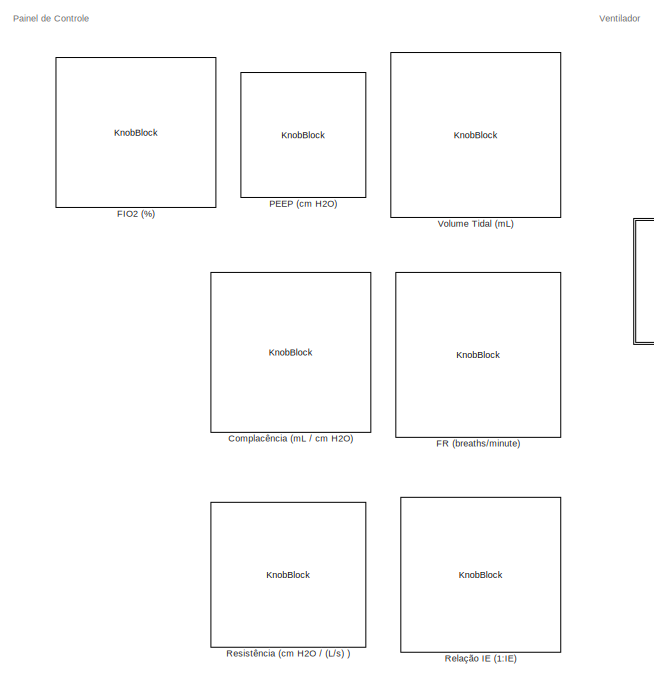
[diagram: root canvas - part 1/3, left side, full height]
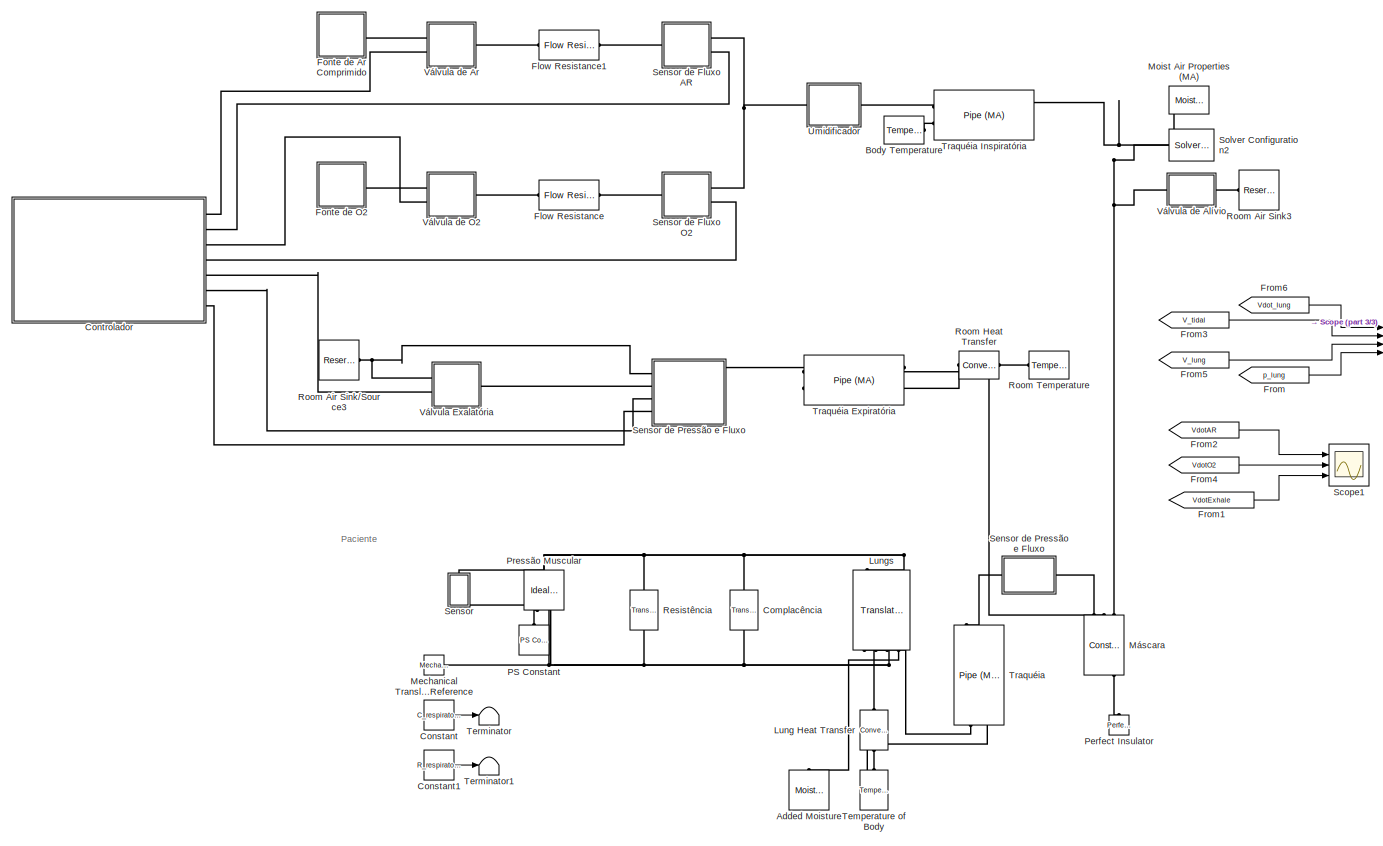
[diagram: root canvas - part 2/3, center side, full height]
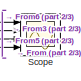
[diagram: root canvas - part 3/3, middle right region]
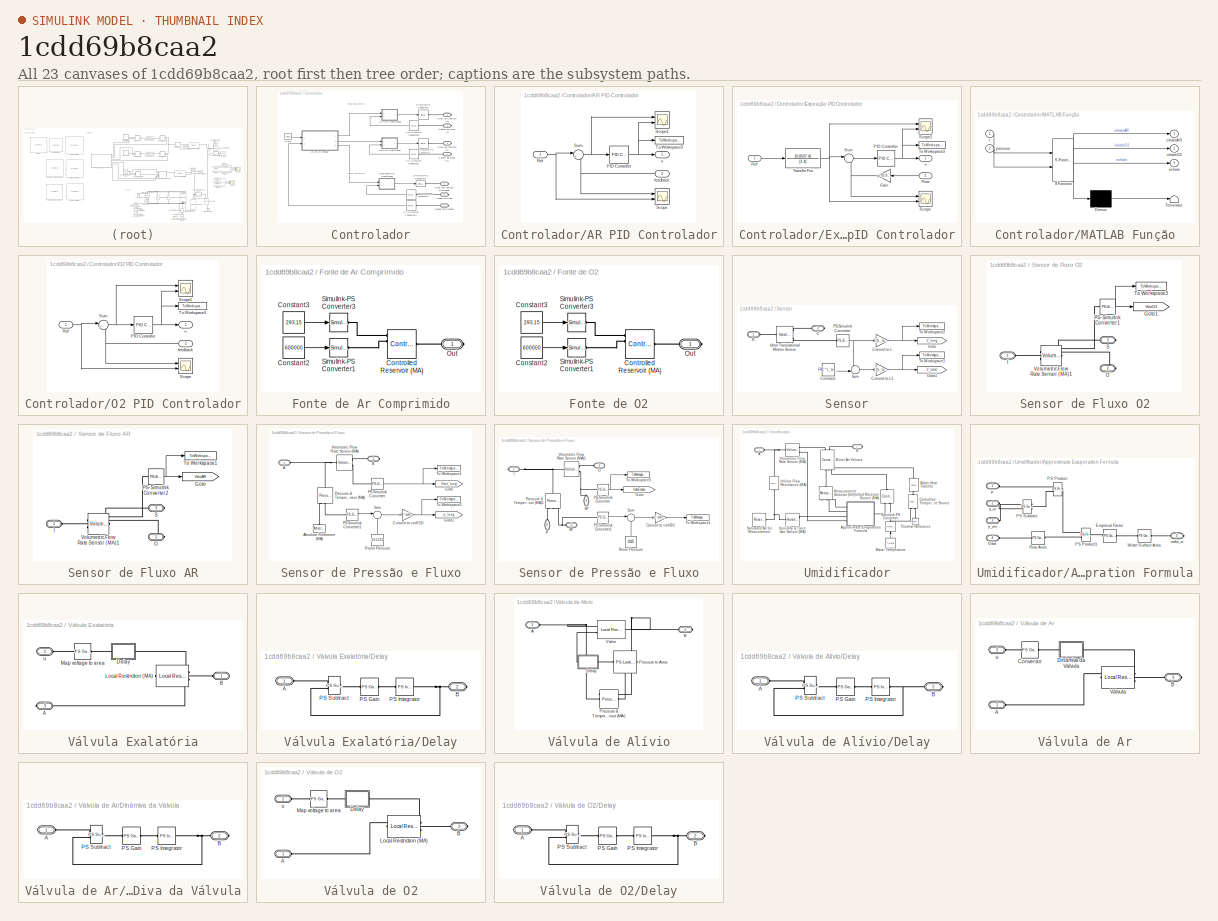
[diagram: thumbnail index - all 23 canvases of the model, root first then tree order]
MODEL slx_1cdd69b8caa2
KIND model
CONFIG AbsTol = 1e-5
CONFIG EnableMultiTasking = off
CONFIG FixedStep = auto
CONFIG MaxStep = 1e-3
CONFIG MinStep = auto
CONFIG PostLoadFcn = hws = get_param(bdroot, 'modelworkspace');\nhws.assignin('T_room', 20); % degC\nhws.assignin('RH_room', 0.1); % degC\nhws.assignin('T_humidifier', 40); % degC\nhws.assignin('T_body', 37); % degC\n\nhws.assignin('L_tube', 1); % m\nhws.assignin('D_tube', 0.01); % m\nhws.assignin('L_trachea', 0.15); % m\nhws.assignin('D_trachea', 0.015); % m\n\n% Conversion factors\nhws.assignin('cmH2O_to_Pa', 98.0665);\nhws.assi...<+433ch>
CONFIG RelTol = 1e-6
CONFIG SampleTimeConstraint = Unconstrained
CONFIG Solver = VariableStepAuto
CONFIG SolverName = VariableStepAuto
CONFIG StartTime = 0.0
CONFIG StopTime = 30
WORKSPACE source: mxarray member
WORKSPACE C_respiratory = 50
WORKSPACE D_trachea = 0.015
WORKSPACE D_tube = 0.01
WORKSPACE FRC = 2
WORKSPACE L_to_m3 = 0.001
WORKSPACE L_trachea = 0.15
WORKSPACE L_tube = 1
WORKSPACE P_muscle = 0
WORKSPACE RH_room = 0.1
WORKSPACE R_respiratory = 5
WORKSPACE T_body = 37
WORKSPACE T_humidifier = 40
WORKSPACE T_room = 20
WORKSPACE cmH2O_to_Pa = 98.0665
BLOCK [Reference] Added Moisture  REF=fl_lib/Moist Air/Sources/Moisture & Trace Gas
Sources/Moisture Source (MA)
  NameLocation = left
  Ports = [0, 0, 0, 0, 0, 1]
  SourceBlock = fl_lib/Moist Air/Sources/Moisture & Trace Gas\nSources/Moisture Source (MA)
  SourceProductBaseCode = SS
  SourceType = Moisture Source (MA)
BLOCK [Reference] Body Temperature  REF=fl_lib/Thermal/Thermal Sources/Temperature Source
  Ports = [0, 0, 0, 0, 0, 1]
  SourceBlock = fl_lib/Thermal/Thermal Sources/Temperature Source
  SourceProductBaseCode = SS
  SourceType = Temperature Source
BLOCK [Reference] Complacência  REF=fl_lib/Mechanical/Translational
Elements/Translational Spring
  NameLocation = right
  Ports = [0, 0, 0, 0, 0, 1, 1]
  SourceBlock = fl_lib/Mechanical/Translational\nElements/Translational Spring
  SourceProductBaseCode = SS
  SourceType = Translational Spring
BLOCK [KnobBlock] Complacência (mL // cm H2O)
  LabelPosition = Hide
  TickInterval = 10
BLOCK [Constant] Constant
  Value = C_respiratory
BLOCK [Constant] Constant1
  Value = R_respiratory
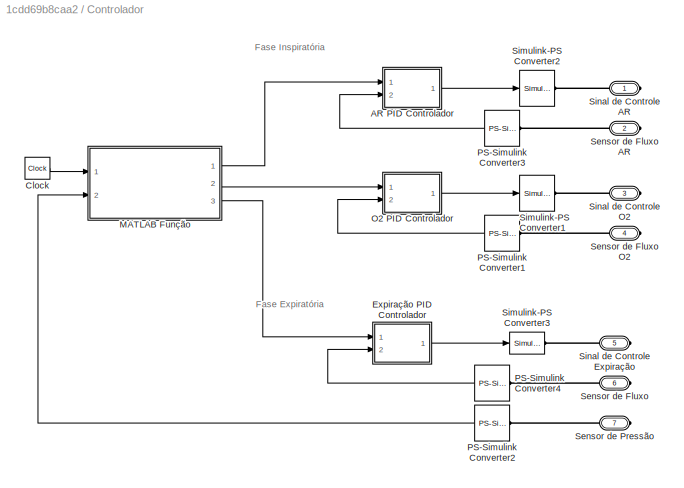
BLOCK [SubSystem] Controlador
  Ports = [0, 0, 0, 0, 0, 0, 7]
  RequestExecContextInheritance = off
  Tag = PublishSubsystem
BLOCK [SubSystem] Controlador/AR PID Controlador
  Ports = [2, 1]
  RequestExecContextInheritance = off
BLOCK [Reference] Controlador/AR PID Controlador/PID Controller  REF=simulink/Continuous/PID Controller
  Ports = [1, 1]
  SourceBlock = simulink/Continuous/PID Controller
  SourceProductBaseCode = SL
  SourceType = PID 1dof
BLOCK [Inport] Controlador/AR PID Controlador/Ref
BLOCK [Scope] Controlador/AR PID Controlador/Scope
  Floating = off
  NumInputPorts = 2
  Ports = [2]
  ScopeSpecificationString = Simulink.scopes.TimeScopeBlockCfg('CurrentConfiguration', extmgr.ConfigurationSet(extmgr.Configuration('Core','General UI',true),extmgr.Configuration('Core','Source UI',true),extmgr.Configuration('Sources','WiredSimulink',true,'DataLoggingVariableName','ScopeData3'),extmgr.Configuration('Visuals','Time Domain',true,'SerializedDisplays',{struct('MinYLimReal','-0.02778','MaxYLimReal','0.25','YLabelR...<+1410ch>
BLOCK [Scope] Controlador/AR PID Controlador/Scope1
  Floating = off
  NumInputPorts = 2
  Ports = [2]
  ScopeSpecificationString = Simulink.scopes.TimeScopeBlockCfg('CurrentConfiguration', extmgr.ConfigurationSet(extmgr.Configuration('Core','General UI',true),extmgr.Configuration('Core','Source UI',true),extmgr.Configuration('Sources','WiredSimulink',true,'DataLoggingVariableName','ScopeData4'),extmgr.Configuration('Visuals','Time Domain',true,'SerializedDisplays',{struct('MinYLimReal','-0.27708','MaxYLimReal','0.27758','YLab...<+2066ch>
BLOCK [Sum] Controlador/AR PID Controlador/Sum
  Inputs = |+-
  Ports = [2, 1]
BLOCK [ToWorkspace] Controlador/AR PID Controlador/To Workspace3
  FixptAsFi = on
  MaxDataPoints = inf
  Ports = [1]
  SampleTime = 1e-3
  Save2DSignal = 2-D array (concatenate along first dimension)
  VariableName = ControlAR
BLOCK [Inport] Controlador/AR PID Controlador/feedback
  Port = 2
BLOCK [Outport] Controlador/AR PID Controlador/u
BLOCK [Clock] Controlador/Clock
  DisplayTime = on
BLOCK [SubSystem] Controlador/Expiração PID Controlador
  Ports = [2, 1]
  RequestExecContextInheritance = off
BLOCK [Inport] Controlador/Expiração PID Controlador/Flow
  Port = 2
BLOCK [Gain] Controlador/Expiração PID Controlador/Gain
  Gain = pi*(0.9*D_tube)^2/4
  NameLocation = top
BLOCK [Reference] Controlador/Expiração PID Controlador/PID Controller  REF=simulink/Continuous/PID Controller
  Ports = [1, 1]
  SourceBlock = simulink/Continuous/PID Controller
  SourceProductBaseCode = SL
  SourceType = PID 1dof
BLOCK [Inport] Controlador/Expiração PID Controlador/Ref
BLOCK [Scope] Controlador/Expiração PID Controlador/Scope
  Floating = off
  NumInputPorts = 2
  Ports = [2]
  ScopeSpecificationString = Simulink.scopes.TimeScopeBlockCfg('CurrentConfiguration', extmgr.ConfigurationSet(extmgr.Configuration('Core','General UI',true),extmgr.Configuration('Core','Source UI',true),extmgr.Configuration('Sources','WiredSimulink',true,'DataLoggingVariableName','ScopeData2'),extmgr.Configuration('Visuals','Time Domain',true,'SerializedDisplays',{struct('MinYLimReal','-0.000005','MaxYLimReal','0.000047','YL...<+1984ch>
BLOCK [Scope] Controlador/Expiração PID Controlador/Scope1
  Floating = off
  NumInputPorts = 2
  Ports = [2]
  ScopeSpecificationString = Simulink.scopes.TimeScopeBlockCfg('CurrentConfiguration', extmgr.ConfigurationSet(extmgr.Configuration('Core','General UI',true),extmgr.Configuration('Core','Source UI',true),extmgr.Configuration('Sources','WiredSimulink',true,'DataLoggingVariableName','ScopeData2'),extmgr.Configuration('Visuals','Time Domain',true,'SerializedDisplays',{struct('MinYLimReal','-0.000008','MaxYLimReal','0.000072','YL...<+2053ch>
BLOCK [Sum] Controlador/Expiração PID Controlador/Sum
  Inputs = |+-
  Ports = [2, 1]
BLOCK [ToWorkspace] Controlador/Expiração PID Controlador/To Workspace3
  FixptAsFi = on
  MaxDataPoints = inf
  Ports = [1]
  SampleTime = 1e-3
  Save2DSignal = 2-D array (concatenate along first dimension)
  VariableName = ControlExhale
BLOCK [TransferFcn] Controlador/Expiração PID Controlador/Transfer Fcn
  Denominator = [1 4]
  Numerator = [0.8507 4]
BLOCK [Outport] Controlador/Expiração PID Controlador/u
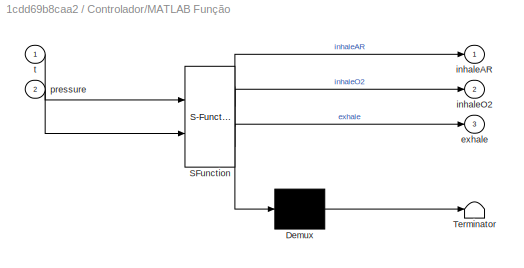
BLOCK [SubSystem] Controlador/MATLAB Função
  ErrorFcn = Stateflow.Translate.translate
  PermitHierarchicalResolution = ExplicitOnly
  Ports = [2, 3]
  RequestExecContextInheritance = off
  SFBlockType = MATLAB Function
  TreatAsAtomicUnit = on
BLOCK [Demux] Controlador/MATLAB Função/ Demux 
  Outputs = 1
  Ports = [1, 1]
BLOCK [S-Function] Controlador/MATLAB Função/ SFunction 
  EnableBusSupport = on
  FunctionName = sf_sfun
  Parameters = D_tube,IE,fio2,flowType,peep,respiratory_rate,tidal_volume
  PortCounts = [2 4]
  Ports = [2, 4]
  SFcnIsStateOwnerBlock = off
  SFunctionDeploymentMode = off
  Tag = Stateflow S-Function 2
BLOCK [Terminator] Controlador/MATLAB Função/ Terminator 
BLOCK [Outport] Controlador/MATLAB Função/exhale
  Port = 3
BLOCK [Outport] Controlador/MATLAB Função/inhaleAR
BLOCK [Outport] Controlador/MATLAB Função/inhaleO2
  Port = 2
BLOCK [Inport] Controlador/MATLAB Função/pressure
  Port = 2
BLOCK [Inport] Controlador/MATLAB Função/t
BLOCK [SubSystem] Controlador/O2 PID Controlador
  Ports = [2, 1]
  RequestExecContextInheritance = off
BLOCK [Reference] Controlador/O2 PID Controlador/PID Controller  REF=simulink/Continuous/PID Controller
  Ports = [1, 1]
  SourceBlock = simulink/Continuous/PID Controller
  SourceProductBaseCode = SL
  SourceType = PID 1dof
BLOCK [Inport] Controlador/O2 PID Controlador/Ref
BLOCK [Scope] Controlador/O2 PID Controlador/Scope
  Floating = off
  NumInputPorts = 2
  Ports = [2]
  ScopeSpecificationString = Simulink.scopes.TimeScopeBlockCfg('CurrentConfiguration', extmgr.ConfigurationSet(extmgr.Configuration('Core','General UI',true),extmgr.Configuration('Core','Source UI',true),extmgr.Configuration('Sources','WiredSimulink',true,'DataLoggingVariableName','ScopeData2'),extmgr.Configuration('Visuals','Time Domain',true,'SerializedDisplays',{struct('MinYLimReal','0.00008','MaxYLimReal','0.0003','YLabel...<+1418ch>
BLOCK [Scope] Controlador/O2 PID Controlador/Scope1
  Floating = off
  NumInputPorts = 2
  Ports = [2]
  ScopeSpecificationString = Simulink.scopes.TimeScopeBlockCfg('CurrentConfiguration', extmgr.ConfigurationSet(extmgr.Configuration('Core','General UI',true),extmgr.Configuration('Core','Source UI',true),extmgr.Configuration('Sources','WiredSimulink',true,'DataLoggingVariableName','ScopeData2'),extmgr.Configuration('Visuals','Time Domain',true,'SerializedDisplays',{struct('MinYLimReal','-0.0002','MaxYLimReal','-0.00000','YLab...<+2044ch>
BLOCK [Sum] Controlador/O2 PID Controlador/Sum
  Inputs = |+-
  Ports = [2, 1]
BLOCK [ToWorkspace] Controlador/O2 PID Controlador/To Workspace3
  FixptAsFi = on
  MaxDataPoints = inf
  Ports = [1]
  SampleTime = 1e-3
  Save2DSignal = 2-D array (concatenate along first dimension)
  VariableName = ControlO2
BLOCK [Inport] Controlador/O2 PID Controlador/feedback
  Port = 2
BLOCK [Outport] Controlador/O2 PID Controlador/u
BLOCK [Reference] Controlador/PS-Simulink Converter1  REF=nesl_utility/PS-Simulink
Converter
  Ports = [0, 1, 0, 0, 0, 1]
  SourceBlock = nesl_utility/PS-Simulink\nConverter
  SourceProductBaseCode = SS
  SourceType = PS-Simulink\nConverter
BLOCK [Reference] Controlador/PS-Simulink Converter2  REF=nesl_utility/PS-Simulink
Converter
  Ports = [0, 1, 0, 0, 0, 1]
  SourceBlock = nesl_utility/PS-Simulink\nConverter
  SourceProductBaseCode = SS
  SourceType = PS-Simulink\nConverter
BLOCK [Reference] Controlador/PS-Simulink Converter3  REF=nesl_utility/PS-Simulink
Converter
  Ports = [0, 1, 0, 0, 0, 1]
  SourceBlock = nesl_utility/PS-Simulink\nConverter
  SourceProductBaseCode = SS
  SourceType = PS-Simulink\nConverter
BLOCK [Reference] Controlador/PS-Simulink Converter4  REF=nesl_utility/PS-Simulink
Converter
  Ports = [0, 1, 0, 0, 0, 1]
  SourceBlock = nesl_utility/PS-Simulink\nConverter
  SourceProductBaseCode = SS
  SourceType = PS-Simulink\nConverter
BLOCK [PMIOPort] Controlador/Sensor de Fluxo
  Port = 6
  Side = Right
BLOCK [PMIOPort] Controlador/Sensor de Fluxo AR
  Port = 2
  Side = Right
BLOCK [PMIOPort] Controlador/Sensor de Fluxo O2
  Port = 4
  Side = Right
BLOCK [PMIOPort] Controlador/Sensor de Pressão
  Port = 7
  Side = Right
BLOCK [Reference] Controlador/Simulink-PS Converter1  REF=nesl_utility/Simulink-PS
Converter
  Ports = [1, 0, 0, 0, 0, 0, 1]
  SourceBlock = nesl_utility/Simulink-PS\nConverter
  SourceProductBaseCode = SS
  SourceType = Simulink-PS\nConverter
BLOCK [Reference] Controlador/Simulink-PS Converter2  REF=nesl_utility/Simulink-PS
Converter
  Ports = [1, 0, 0, 0, 0, 0, 1]
  SourceBlock = nesl_utility/Simulink-PS\nConverter
  SourceProductBaseCode = SS
  SourceType = Simulink-PS\nConverter
BLOCK [Reference] Controlador/Simulink-PS Converter3  REF=nesl_utility/Simulink-PS
Converter
  Ports = [1, 0, 0, 0, 0, 0, 1]
  SourceBlock = nesl_utility/Simulink-PS\nConverter
  SourceProductBaseCode = SS
  SourceType = Simulink-PS\nConverter
BLOCK [PMIOPort] Controlador/Sinal de Controle AR
  Side = Right
BLOCK [PMIOPort] Controlador/Sinal de Controle Expiração
  Port = 5
  Side = Right
BLOCK [PMIOPort] Controlador/Sinal de Controle O2
  Port = 3
  Side = Right
BLOCK [KnobBlock] FIO2 (%)
  LabelPosition = Hide
  ScaleMin = 21
  TickInterval = 10
BLOCK [KnobBlock] FR (breaths//minute)
  LabelPosition = Hide
  ScaleMax = 40
  TickInterval = 5
BLOCK [Reference] Flow Resistance  REF=fl_lib/Moist Air/Elements/Flow Resistance (MA)
  NameLocation = top
  Ports = [0, 0, 0, 0, 0, 1, 1]
  SourceBlock = fl_lib/Moist Air/Elements/Flow Resistance (MA)
  SourceProductBaseCode = SS
  SourceType = Flow Resistance (MA)
BLOCK [Reference] Flow Resistance1  REF=fl_lib/Moist Air/Elements/Flow Resistance (MA)
  NameLocation = top
  Ports = [0, 0, 0, 0, 0, 1, 1]
  SourceBlock = fl_lib/Moist Air/Elements/Flow Resistance (MA)
  SourceProductBaseCode = SS
  SourceType = Flow Resistance (MA)
BLOCK [SubSystem] Fonte de Ar Comprimido
  Ports = [0, 0, 0, 0, 0, 0, 1]
  RequestExecContextInheritance = off
BLOCK [Constant] Fonte de Ar Comprimido/Constant2
  Value = 600000
BLOCK [Constant] Fonte de Ar Comprimido/Constant3
  Value = 293.15
BLOCK [Reference] Fonte de Ar Comprimido/Controlled Reservoir (MA)  REF=fl_lib/Moist Air/Elements/Controlled Reservoir
(MA)
  Ports = [0, 0, 0, 0, 0, 1, 4]
  SourceBlock = fl_lib/Moist Air/Elements/Controlled Reservoir\n(MA)
  SourceProductBaseCode = SS
  SourceType = Controlled Reservoir\n(MA)
BLOCK [PMIOPort] Fonte de Ar Comprimido/Out
  Side = Right
BLOCK [Reference] Fonte de Ar Comprimido/Simulink-PS Converter1  REF=nesl_utility/Simulink-PS
Converter
  Ports = [1, 0, 0, 0, 0, 0, 1]
  SourceBlock = nesl_utility/Simulink-PS\nConverter
  SourceProductBaseCode = SS
  SourceType = Simulink-PS\nConverter
BLOCK [Reference] Fonte de Ar Comprimido/Simulink-PS Converter3  REF=nesl_utility/Simulink-PS
Converter
  Ports = [1, 0, 0, 0, 0, 0, 1]
  SourceBlock = nesl_utility/Simulink-PS\nConverter
  SourceProductBaseCode = SS
  SourceType = Simulink-PS\nConverter
BLOCK [SubSystem] Fonte de O2
  Ports = [0, 0, 0, 0, 0, 0, 1]
  RequestExecContextInheritance = off
BLOCK [Constant] Fonte de O2/Constant2
  Value = 600000
BLOCK [Constant] Fonte de O2/Constant3
  Value = 293.15
BLOCK [Reference] Fonte de O2/Controlled Reservoir (MA)  REF=fl_lib/Moist Air/Elements/Controlled Reservoir
(MA)
  Ports = [0, 0, 0, 0, 0, 1, 4]
  SourceBlock = fl_lib/Moist Air/Elements/Controlled Reservoir\n(MA)
  SourceProductBaseCode = SS
  SourceType = Controlled Reservoir\n(MA)
BLOCK [PMIOPort] Fonte de O2/Out
  Side = Right
BLOCK [Reference] Fonte de O2/Simulink-PS Converter1  REF=nesl_utility/Simulink-PS
Converter
  Ports = [1, 0, 0, 0, 0, 0, 1]
  SourceBlock = nesl_utility/Simulink-PS\nConverter
  SourceProductBaseCode = SS
  SourceType = Simulink-PS\nConverter
BLOCK [Reference] Fonte de O2/Simulink-PS Converter3  REF=nesl_utility/Simulink-PS
Converter
  Ports = [1, 0, 0, 0, 0, 0, 1]
  SourceBlock = nesl_utility/Simulink-PS\nConverter
  SourceProductBaseCode = SS
  SourceType = Simulink-PS\nConverter
BLOCK [From] From
  GotoTag = p_lung
  TagVisibility = global
BLOCK [From] From1
  GotoTag = VdotExhale
  TagVisibility = global
BLOCK [From] From2
  GotoTag = VdotAR
  TagVisibility = global
BLOCK [From] From3
  GotoTag = V_tidal
  TagVisibility = global
BLOCK [From] From4
  GotoTag = VdotO2
  TagVisibility = global
BLOCK [From] From5
  GotoTag = V_lung
  TagVisibility = global
BLOCK [From] From6
  GotoTag = Vdot_lung
  TagVisibility = global
BLOCK [Reference] Lung Heat Transfer  REF=fl_lib/Thermal/Thermal Elements/Convective Heat
Transfer
  NameLocation = right
  Ports = [0, 0, 0, 0, 0, 1, 1]
  SourceBlock = fl_lib/Thermal/Thermal Elements/Convective Heat\nTransfer
  SourceProductBaseCode = SS
  SourceType = Convective Heat\nTransfer
BLOCK [Reference] Lungs  REF=fl_lib/Moist Air/Elements/Translational
Mechanical Converter
(MA)
  NameLocation = right
  Ports = [0, 0, 0, 0, 0, 4, 3]
  SourceBlock = fl_lib/Moist Air/Elements/Translational\nMechanical Converter\n(MA)
  SourceProductBaseCode = SS
  SourceType = Translational\nMechanical Converter\n(MA)
BLOCK [Reference] Mechanical Translational Reference  REF=fl_lib/Mechanical/Translational
Elements/Mechanical
Translational
Reference
  Ports = [0, 0, 0, 0, 0, 1]
  SourceBlock = fl_lib/Mechanical/Translational\nElements/Mechanical\nTranslational\nReference
  SourceProductBaseCode = SS
  SourceType = Mechanical\nTranslational\nReference
BLOCK [Reference] Moist Air Properties (MA)  REF=fl_lib/Moist Air/Utilities/Moist Air Properties
(MA)
  NameLocation = top
  Ports = [0, 0, 0, 0, 0, 0, 1]
  SourceBlock = fl_lib/Moist Air/Utilities/Moist Air Properties\n(MA)
  SourceProductBaseCode = SS
  SourceType = Moist Air Properties\n(MA)
BLOCK [Reference] Máscara  REF=fl_lib/Moist Air/Elements/Constant Volume
Chamber (MA)
  NameLocation = right
  Ports = [0, 0, 0, 0, 0, 3, 3]
  SourceBlock = fl_lib/Moist Air/Elements/Constant Volume\nChamber (MA)
  SourceProductBaseCode = SS
  SourceType = Constant Volume\nChamber (MA)
BLOCK [KnobBlock] PEEP (cm H2O)
  LabelPosition = Hide
  ScaleMax = 20
  TickInterval = 5
BLOCK [Reference] PS Constant  REF=fl_lib/Physical Signals/Sources/PS Constant
  NameLocation = right
  Ports = [0, 0, 0, 0, 0, 0, 1]
  SourceBlock = fl_lib/Physical Signals/Sources/PS Constant
  SourceProductBaseCode = SS
  SourceType = PS Constant
BLOCK [Reference] Perfect Insulator  REF=fl_lib/Thermal/Thermal Elements/Perfect Insulator
  NameLocation = right
  Ports = [0, 0, 0, 0, 0, 1]
  SourceBlock = fl_lib/Thermal/Thermal Elements/Perfect Insulator
  SourceProductBaseCode = SS
  SourceType = Perfect Insulator
BLOCK [Reference] Pressão Muscular  REF=fl_lib/Mechanical/Mechanical Sources/Ideal Force Source
  NameLocation = right
  Ports = [0, 0, 0, 0, 0, 1, 2]
  SourceBlock = fl_lib/Mechanical/Mechanical Sources/Ideal Force Source
  SourceProductBaseCode = SS
  SourceType = Ideal Force Source
BLOCK [KnobBlock] Relação IE (1:IE)
  LabelPosition = Hide
  ScaleMax = 4
  ScaleMin = 1
  TickInterval = 0.5
BLOCK [Reference] Resistência  REF=fl_lib/Mechanical/Translational
Elements/Translational Damper
  NameLocation = right
  Ports = [0, 0, 0, 0, 0, 1, 1]
  SourceBlock = fl_lib/Mechanical/Translational\nElements/Translational Damper
  SourceProductBaseCode = SS
  SourceType = Translational Damper
BLOCK [KnobBlock] Resistência (cm H2O // (L//s) )
  LabelPosition = Hide
  ScaleMax = 50
  TickInterval = 5
BLOCK [Reference] Room Air Sink//Source3  REF=fl_lib/Moist Air/Elements/Reservoir (MA)
  Ports = [0, 0, 0, 0, 0, 1]
  SourceBlock = fl_lib/Moist Air/Elements/Reservoir (MA)
  SourceProductBaseCode = SS
  SourceType = Reservoir (MA)
BLOCK [Reference] Room Air Sink3  REF=fl_lib/Moist Air/Elements/Reservoir (MA)
  Ports = [0, 0, 0, 0, 0, 1]
  SourceBlock = fl_lib/Moist Air/Elements/Reservoir (MA)
  SourceProductBaseCode = SS
  SourceType = Reservoir (MA)
BLOCK [Reference] Room Heat Transfer  REF=fl_lib/Thermal/Thermal Elements/Convective Heat
Transfer
  NameLocation = top
  Ports = [0, 0, 0, 0, 0, 1, 1]
  SourceBlock = fl_lib/Thermal/Thermal Elements/Convective Heat\nTransfer
  SourceProductBaseCode = SS
  SourceType = Convective Heat\nTransfer
BLOCK [Reference] Room Temperature  REF=fl_lib/Thermal/Thermal Sources/Temperature Source
  NameLocation = top
  Ports = [0, 0, 0, 0, 0, 1]
  SourceBlock = fl_lib/Thermal/Thermal Sources/Temperature Source
  SourceProductBaseCode = SS
  SourceType = Temperature Source
BLOCK [Scope] Scope
  Floating = off
  NumInputPorts = 4
  Ports = [4]
  ScopeSpecificationString = Simulink.scopes.TimeScopeBlockCfg('CurrentConfiguration', extmgr.ConfigurationSet(extmgr.Configuration('Core','General UI',true),extmgr.Configuration('Core','Source UI',true),extmgr.Configuration('Sources','WiredSimulink',true),extmgr.Configuration('Visuals','Time Domain',true,'SerializedDisplays',{struct('MinYLimReal','-48.70218','MaxYLimReal','54.96606','YLabelReal','','MinYLimMag','0.00000','Ma...<+3537ch>
  Tag = PublishScope
BLOCK [Scope] Scope1
  Floating = off
  NumInputPorts = 3
  Ports = [3]
  ScopeSpecificationString = Simulink.scopes.TimeScopeBlockCfg('CurrentConfiguration', extmgr.ConfigurationSet(extmgr.Configuration('Core','General UI',true),extmgr.Configuration('Core','Source UI',true),extmgr.Configuration('Sources','WiredSimulink',true,'DataLoggingVariableName','ScopeData1'),extmgr.Configuration('Visuals','Time Domain',true,'SerializedDisplays',{struct('MinYLimReal','-3.6836','MaxYLimReal','33.21472','YLab...<+3161ch>
  Tag = PublishScope
BLOCK [SubSystem] Sensor
  NameLocation = right
  Ports = [0, 0, 0, 0, 0, 1, 1]
  RequestExecContextInheritance = off
BLOCK [SubSystem] Sensor de Fluxo AR
  Ports = [0, 0, 0, 0, 0, 1, 2]
  RequestExecContextInheritance = off
BLOCK [Goto] Sensor de Fluxo AR/Goto
  GotoTag = VdotAR
  TagVisibility = global
BLOCK [PMIOPort] Sensor de Fluxo AR/I
  Side = Left
BLOCK [PMIOPort] Sensor de Fluxo AR/O
  Port = 2
  Side = Right
BLOCK [Reference] Sensor de Fluxo AR/PS-Simulink Converter2  REF=nesl_utility/PS-Simulink
Converter
  Ports = [0, 1, 0, 0, 0, 1]
  SourceBlock = nesl_utility/PS-Simulink\nConverter
  SourceProductBaseCode = SS
  SourceType = PS-Simulink\nConverter
BLOCK [PMIOPort] Sensor de Fluxo AR/S
  Port = 3
  Side = Right
BLOCK [ToWorkspace] Sensor de Fluxo AR/To Workspace1
  FixptAsFi = on
  MaxDataPoints = inf
  Ports = [1]
  SampleTime = 1e-3
  Save2DSignal = 2-D array (concatenate along first dimension)
  VariableName = FlowAR
BLOCK [Reference] Sensor de Fluxo AR/Volumetric Flow Rate Sensor (MA)1  REF=fl_lib/Moist Air/Sensors/Volumetric Flow Rate
Sensor (MA)
  Ports = [0, 0, 0, 0, 0, 1, 2]
  SourceBlock = fl_lib/Moist Air/Sensors/Volumetric Flow Rate\nSensor (MA)
  SourceProductBaseCode = SS
  SourceType = Volumetric Flow Rate\nSensor (MA)
BLOCK [SubSystem] Sensor de Fluxo O2
  Ports = [0, 0, 0, 0, 0, 1, 2]
  RequestExecContextInheritance = off
BLOCK [Goto] Sensor de Fluxo O2/Goto1
  GotoTag = VdotO2
  TagVisibility = global
BLOCK [PMIOPort] Sensor de Fluxo O2/I
  Side = Left
BLOCK [PMIOPort] Sensor de Fluxo O2/O
  Port = 2
  Side = Right
BLOCK [Reference] Sensor de Fluxo O2/PS-Simulink Converter1  REF=nesl_utility/PS-Simulink
Converter
  Ports = [0, 1, 0, 0, 0, 1]
  SourceBlock = nesl_utility/PS-Simulink\nConverter
  SourceProductBaseCode = SS
  SourceType = PS-Simulink\nConverter
BLOCK [PMIOPort] Sensor de Fluxo O2/S
  Port = 3
  Side = Right
BLOCK [ToWorkspace] Sensor de Fluxo O2/To Workspace3
  FixptAsFi = on
  MaxDataPoints = inf
  Ports = [1]
  SampleTime = 1e-3
  Save2DSignal = 2-D array (concatenate along first dimension)
  VariableName = FlowO2
BLOCK [Reference] Sensor de Fluxo O2/Volumetric Flow Rate Sensor (MA)1  REF=fl_lib/Moist Air/Sensors/Volumetric Flow Rate
Sensor (MA)
  Ports = [0, 0, 0, 0, 0, 1, 2]
  SourceBlock = fl_lib/Moist Air/Sensors/Volumetric Flow Rate\nSensor (MA)
  SourceProductBaseCode = SS
  SourceType = Volumetric Flow Rate\nSensor (MA)
BLOCK [SubSystem] Sensor de Pressão e Fluxo
  Ports = [0, 0, 0, 0, 0, 4, 1]
  RequestExecContextInheritance = off
BLOCK [PMIOPort] Sensor de Pressão e Fluxo/A
  Side = Left
BLOCK [Reference] Sensor de Pressão e Fluxo/Absolute Reference (MA)  REF=fl_lib/Moist Air/Elements/Absolute Reference
(MA)
  NameLocation = right
  Ports = [0, 0, 0, 0, 0, 1]
  SourceBlock = fl_lib/Moist Air/Elements/Absolute Reference\n(MA)
  SourceProductBaseCode = SS
  SourceType = Absolute Reference\n(MA)
BLOCK [PMIOPort] Sensor de Pressão e Fluxo/B
  Port = 2
  Side = Right
BLOCK [Gain] Sensor de Pressão e Fluxo/Convert to cmH2O
  Gain = 1 / cmH2O_to_Pa
BLOCK [Goto] Sensor de Pressão e Fluxo/Goto
  GotoTag = VdotExhale
  TagVisibility = global
BLOCK [Goto] Sensor de Pressão e Fluxo/Goto1
  GotoTag = p_lung
  TagVisibility = global
BLOCK [PMIOPort] Sensor de Pressão e Fluxo/I
  Side = Right
BLOCK [PMIOPort] Sensor de Pressão e Fluxo/O
  Port = 3
  Side = Left
BLOCK [PMIOPort] Sensor de Pressão e Fluxo/P
  NameLocation = left
  Port = 2
  Side = Left
BLOCK [Reference] Sensor de Pressão e Fluxo/PS-Simulink Converter  REF=nesl_utility/PS-Simulink
Converter
  Ports = [0, 1, 0, 0, 0, 1]
  SourceBlock = nesl_utility/PS-Simulink\nConverter
  SourceProductBaseCode = SS
  SourceType = PS-Simulink\nConverter
BLOCK [Reference] Sensor de Pressão e Fluxo/PS-Simulink Converter1  REF=nesl_utility/PS-Simulink
Converter
  Ports = [0, 1, 0, 0, 0, 1]
  SourceBlock = nesl_utility/PS-Simulink\nConverter
  SourceProductBaseCode = SS
  SourceType = PS-Simulink\nConverter
BLOCK [Reference] Sensor de Pressão e Fluxo/Pressure & Temperature Sensor (MA)  REF=fl_lib/Moist Air/Sensors/Pressure &
Temperature Sensor
(MA)
  NameLocation = right
  Ports = [0, 0, 0, 0, 0, 1, 3]
  SourceBlock = fl_lib/Moist Air/Sensors/Pressure &\nTemperature Sensor\n(MA)
  SourceProductBaseCode = SS
  SourceType = Pressure &\nTemperature Sensor\n(MA)
BLOCK [Reference] Sensor de Pressão e Fluxo/Pressure & Temperature Sensor (MA)1  REF=fl_lib/Moist Air/Sensors/Pressure &
Temperature Sensor
(MA)
  NameLocation = right
  Ports = [0, 0, 0, 0, 0, 1, 3]
  SourceBlock = fl_lib/Moist Air/Sensors/Pressure &\nTemperature Sensor\n(MA)
  SourceProductBaseCode = SS
  SourceType = Pressure &\nTemperature Sensor\n(MA)
BLOCK [Constant] Sensor de Pressão e Fluxo/Room Pressure
  NameLocation = right
  Value = 101325
BLOCK [PMIOPort] Sensor de Pressão e Fluxo/SF
  NameLocation = left
  Port = 4
  Side = Left
BLOCK [PMIOPort] Sensor de Pressão e Fluxo/SP
  Port = 5
  Side = Left
BLOCK [Sum] Sensor de Pressão e Fluxo/Sum
  Inputs = |+-
  Ports = [2, 1]
BLOCK [ToWorkspace] Sensor de Pressão e Fluxo/To Workspace1
  FixptAsFi = on
  MaxDataPoints = inf
  Ports = [1]
  SampleTime = 1e-3
  Save2DSignal = 2-D array (concatenate along first dimension)
  VariableName = PressureExhale
BLOCK [ToWorkspace] Sensor de Pressão e Fluxo/To Workspace2
  FixptAsFi = on
  MaxDataPoints = inf
  Ports = [1]
  SampleTime = 1e-3
  Save2DSignal = 2-D array (concatenate along first dimension)
  VariableName = LungPressure
BLOCK [ToWorkspace] Sensor de Pressão e Fluxo/To Workspace3
  FixptAsFi = on
  MaxDataPoints = inf
  Ports = [1]
  SampleTime = 1e-3
  Save2DSignal = 2-D array (concatenate along first dimension)
  VariableName = FlowExhale
BLOCK [Reference] Sensor de Pressão e Fluxo/Volumetric Flow Rate Sensor (MA)  REF=fl_lib/Moist Air/Sensors/Volumetric Flow Rate
Sensor (MA)
  Ports = [0, 0, 0, 0, 0, 1, 2]
  SourceBlock = fl_lib/Moist Air/Sensors/Volumetric Flow Rate\nSensor (MA)
  SourceProductBaseCode = SS
  SourceType = Volumetric Flow Rate\nSensor (MA)
BLOCK [Reference] Sensor de Pressão e Fluxo/Volumetric Flow Rate Sensor (MA)1  REF=fl_lib/Moist Air/Sensors/Volumetric Flow Rate
Sensor (MA)
  Ports = [0, 0, 0, 0, 0, 1, 2]
  SourceBlock = fl_lib/Moist Air/Sensors/Volumetric Flow Rate\nSensor (MA)
  SourceProductBaseCode = SS
  SourceType = Volumetric Flow Rate\nSensor (MA)
BLOCK [PMIOPort] Sensor/C
  Port = 2
  Side = Right
BLOCK [Constant] Sensor/Constant
  Value = FRC * L_to_m3
BLOCK [Gain] Sensor/Convert to L
  Gain = 1/(L_to_m3)*1000
BLOCK [Gain] Sensor/Convert to L1
  Gain = 1/(L_to_m3)*1000
BLOCK [Goto] Sensor/Goto
  GotoTag = V_lung
  TagVisibility = global
BLOCK [Goto] Sensor/Goto1
  GotoTag = V_tidal
  TagVisibility = global
BLOCK [Reference] Sensor/Ideal Translational Motion Sensor  REF=fl_lib/Mechanical/Mechanical Sensors/Ideal Translational
Motion Sensor
  Ports = [0, 0, 0, 0, 0, 1, 3]
  SourceBlock = fl_lib/Mechanical/Mechanical Sensors/Ideal Translational\nMotion Sensor
  SourceProductBaseCode = SS
  SourceType = Ideal Translational\nMotion Sensor
BLOCK [Reference] Sensor/PS-Simulink Converter  REF=nesl_utility/PS-Simulink
Converter
  Ports = [0, 1, 0, 0, 0, 1]
  SourceBlock = nesl_utility/PS-Simulink\nConverter
  SourceProductBaseCode = SS
  SourceType = PS-Simulink\nConverter
BLOCK [PMIOPort] Sensor/R
  Side = Left
BLOCK [Sum] Sensor/Sum
  Inputs = +-|
  Ports = [2, 1]
BLOCK [ToWorkspace] Sensor/To Workspace1
  FixptAsFi = on
  MaxDataPoints = inf
  Ports = [1]
  SampleTime = 1e-3
  Save2DSignal = 2-D array (concatenate along first dimension)
  VariableName = VolumeTidal
BLOCK [ToWorkspace] Sensor/To Workspace2
  FixptAsFi = on
  MaxDataPoints = inf
  Ports = [1]
  SampleTime = 1e-3
  Save2DSignal = 2-D array (concatenate along first dimension)
  VariableName = LungVolume
BLOCK [Reference] Solver Configuration2  REF=nesl_utility/Solver
Configuration
  Ports = [0, 0, 0, 0, 0, 0, 1]
  SourceBlock = nesl_utility/Solver\nConfiguration
  SourceProductBaseCode = SS
  SourceType = Solver\nConfiguration
BLOCK [Reference] Temperature of Body  REF=fl_lib/Thermal/Thermal Sources/Temperature Source
  NameLocation = right
  Ports = [0, 0, 0, 0, 0, 1]
  SourceBlock = fl_lib/Thermal/Thermal Sources/Temperature Source
  SourceProductBaseCode = SS
  SourceType = Temperature Source
BLOCK [Terminator] Terminator
BLOCK [Terminator] Terminator1
BLOCK [Reference] Traquéia  REF=fl_lib/Moist Air/Elements/Pipe (MA)
  NameLocation = right
  Ports = [0, 0, 0, 0, 0, 2, 3]
  SourceBlock = fl_lib/Moist Air/Elements/Pipe (MA)
  SourceProductBaseCode = SS
  SourceType = Pipe (MA)
BLOCK [Reference] Traquéia Expiratória  REF=fl_lib/Moist Air/Elements/Pipe (MA)
  NameLocation = top
  Ports = [0, 0, 0, 0, 0, 2, 3]
  SourceBlock = fl_lib/Moist Air/Elements/Pipe (MA)
  SourceProductBaseCode = SS
  SourceType = Pipe (MA)
BLOCK [Reference] Traquéia Inspiratória  REF=fl_lib/Moist Air/Elements/Pipe (MA)
  NameLocation = top
  Ports = [0, 0, 0, 0, 0, 2, 3]
  SourceBlock = fl_lib/Moist Air/Elements/Pipe (MA)
  SourceProductBaseCode = SS
  SourceType = Pipe (MA)
BLOCK [SubSystem] Umidificador
  NameLocation = top
  Ports = [0, 0, 0, 0, 0, 1, 1]
  RequestExecContextInheritance = off
  Tag = PublishSubsystem
BLOCK [PMIOPort] Umidificador/A
  Side = Left
BLOCK [SubSystem] Umidificador/Approximate Evaporation Formula
  Ports = [0, 0, 0, 0, 0, 4, 1]
  RequestExecContextInheritance = off
BLOCK [Reference] Umidificador/Approximate Evaporation Formula/Empirical Factor  REF=fl_lib/Physical Signals/Functions/PS Gain
  Ports = [0, 0, 0, 0, 0, 1, 1]
  SourceBlock = fl_lib/Physical Signals/Functions/PS Gain
  SourceProductBaseCode = SS
  SourceType = PS Gain
BLOCK [Reference] Umidificador/Approximate Evaporation Formula/Flow Area  REF=fl_lib/Physical Signals/Functions/PS Gain
  Ports = [0, 0, 0, 0, 0, 1, 1]
  SourceBlock = fl_lib/Physical Signals/Functions/PS Gain
  SourceProductBaseCode = SS
  SourceType = PS Gain
BLOCK [Reference] Umidificador/Approximate Evaporation Formula/PS Product  REF=fl_lib/Physical Signals/Functions/PS Product
  Ports = [0, 0, 0, 0, 0, 2, 1]
  SourceBlock = fl_lib/Physical Signals/Functions/PS Product
  SourceProductBaseCode = SS
  SourceType = PS Product
BLOCK [Reference] Umidificador/Approximate Evaporation Formula/PS Product1  REF=fl_lib/Physical Signals/Functions/PS Product
  Ports = [0, 0, 0, 0, 0, 2, 1]
  SourceBlock = fl_lib/Physical Signals/Functions/PS Product
  SourceProductBaseCode = SS
  SourceType = PS Product
BLOCK [Reference] Umidificador/Approximate Evaporation Formula/PS Subtract  REF=fl_lib/Physical Signals/Functions/PS Subtract
  Ports = [0, 0, 0, 0, 0, 2, 1]
  SourceBlock = fl_lib/Physical Signals/Functions/PS Subtract
  SourceProductBaseCode = SS
  SourceType = PS Subtract
BLOCK [PMIOPort] Umidificador/Approximate Evaporation Formula/Vdot
  Port = 4
  Side = Left
BLOCK [Reference] Umidificador/Approximate Evaporation Formula/Water Surface Area  REF=fl_lib/Physical Signals/Functions/PS Gain
  Ports = [0, 0, 0, 0, 0, 1, 1]
  SourceBlock = fl_lib/Physical Signals/Functions/PS Gain
  SourceProductBaseCode = SS
  SourceType = PS Gain
BLOCK [PMIOPort] Umidificador/Approximate Evaporation Formula/mdot_w
  Port = 5
  Side = Right
BLOCK [PMIOPort] Umidificador/Approximate Evaporation Formula/p
  Side = Left
BLOCK [PMIOPort] Umidificador/Approximate Evaporation Formula/y_w
  Port = 2
  Side = Left
BLOCK [PMIOPort] Umidificador/Approximate Evaporation Formula/y_ws
  Port = 3
  Side = Left
BLOCK [PMIOPort] Umidificador/B
  Port = 2
  Side = Right
BLOCK [Reference] Umidificador/Controlled Moisture Source (MA)  REF=fl_lib/Moist Air/Sources/Moisture & Trace Gas
Sources/Controlled Moisture
Source (MA)
  NameLocation = right
  Ports = [0, 0, 0, 0, 0, 1, 2]
  SourceBlock = fl_lib/Moist Air/Sources/Moisture & Trace Gas\nSources/Controlled Moisture\nSource (MA)
  SourceProductBaseCode = SS
  SourceType = Controlled Moisture\nSource (MA)
BLOCK [Reference] Umidificador/Controlled Temperature Source  REF=fl_lib/Thermal/Thermal Sources/Controlled
Temperature Source
  NameLocation = right
  Ports = [0, 0, 0, 0, 0, 1, 2]
  SourceBlock = fl_lib/Thermal/Thermal Sources/Controlled\nTemperature Source
  SourceProductBaseCode = SS
  SourceType = Controlled\nTemperature Source
BLOCK [Reference] Umidificador/Humidity & Trace Gas Sensor (MA)  REF=fl_lib/Moist Air/Sensors/Humidity & Trace Gas
Sensor (MA)
  Ports = [0, 0, 0, 0, 0, 1, 2]
  SourceBlock = fl_lib/Moist Air/Sensors/Humidity & Trace Gas\nSensor (MA)
  SourceProductBaseCode = SS
  SourceType = Humidity & Trace Gas\nSensor (MA)
BLOCK [Reference] Umidificador/Infinite Flow Resistance (MA)  REF=fl_lib/Moist Air/Elements/Infinite Flow
Resistance (MA)
  NameLocation = right
  Ports = [0, 0, 0, 0, 0, 1, 1]
  SourceBlock = fl_lib/Moist Air/Elements/Infinite Flow\nResistance (MA)
  SourceProductBaseCode = SS
  SourceType = Infinite Flow\nResistance (MA)
BLOCK [Reference] Umidificador/Measurement Selector (MA)  REF=fl_lib/Moist Air/Sensors/Measurement Selector
(MA)
  NameLocation = right
  Ports = [0, 0, 0, 0, 0, 1, 4]
  SourceBlock = fl_lib/Moist Air/Sensors/Measurement Selector\n(MA)
  SourceProductBaseCode = SS
  SourceType = Measurement Selector\n(MA)
BLOCK [Reference] Umidificador/Moist Air Volume  REF=fl_lib/Moist Air/Elements/Constant Volume
Chamber (MA)
  NameLocation = right
  Ports = [0, 0, 0, 0, 0, 2, 4]
  SourceBlock = fl_lib/Moist Air/Elements/Constant Volume\nChamber (MA)
  SourceProductBaseCode = SS
  SourceType = Constant Volume\nChamber (MA)
BLOCK [Reference] Umidificador/Saturated Air for Measurement  REF=fl_lib/Moist Air/Elements/Reservoir (MA)
  Ports = [0, 0, 0, 0, 0, 1]
  SourceBlock = fl_lib/Moist Air/Elements/Reservoir (MA)
  SourceProductBaseCode = SS
  SourceType = Reservoir (MA)
BLOCK [Reference] Umidificador/Simulink-PS Converter  REF=nesl_utility/Simulink-PS
Converter
  NameLocation = right
  Ports = [1, 0, 0, 0, 0, 0, 1]
  SourceBlock = nesl_utility/Simulink-PS\nConverter
  SourceProductBaseCode = SS
  SourceType = Simulink-PS\nConverter
BLOCK [Reference] Umidificador/Thermal Reference  REF=fl_lib/Thermal/Thermal Elements/Thermal Reference
  NameLocation = right
  Ports = [0, 0, 0, 0, 0, 1]
  SourceBlock = fl_lib/Thermal/Thermal Elements/Thermal Reference
  SourceProductBaseCode = SS
  SourceType = Thermal Reference
BLOCK [Reference] Umidificador/Volumetric Flow Rate Sensor (MA)  REF=fl_lib/Moist Air/Sensors/Volumetric Flow Rate
Sensor (MA)
  Ports = [0, 0, 0, 0, 0, 1, 2]
  SourceBlock = fl_lib/Moist Air/Sensors/Volumetric Flow Rate\nSensor (MA)
  SourceProductBaseCode = SS
  SourceType = Volumetric Flow Rate\nSensor (MA)
BLOCK [Reference] Umidificador/Water Heat Transfer  REF=fl_lib/Thermal/Thermal Elements/Convective Heat
Transfer
  NameLocation = right
  Ports = [0, 0, 0, 0, 0, 1, 1]
  SourceBlock = fl_lib/Thermal/Thermal Elements/Convective Heat\nTransfer
  SourceProductBaseCode = SS
  SourceType = Convective Heat\nTransfer
BLOCK [Constant] Umidificador/Water Temperature
  NameLocation = right
  Value = T_water
BLOCK [KnobBlock] Volume Tidal (mL)
  LabelPosition = Hide
  ScaleMax = 800
  TickInterval = 100
BLOCK [SubSystem] Válvula Exalatória
  Ports = [0, 0, 0, 0, 0, 2, 1]
  RequestExecContextInheritance = off
BLOCK [PMIOPort] Válvula Exalatória/A
  Port = 3
  Side = Right
BLOCK [PMIOPort] Válvula Exalatória/B
  Side = Left
BLOCK [SubSystem] Válvula Exalatória/Delay
  NameLocation = top
  Ports = [0, 0, 0, 0, 0, 1, 1]
  RequestExecContextInheritance = off
BLOCK [PMIOPort] Válvula Exalatória/Delay/A
  Side = Left
BLOCK [PMIOPort] Válvula Exalatória/Delay/B
  Port = 2
  Side = Right
BLOCK [Reference] Válvula Exalatória/Delay/PS Gain  REF=fl_lib/Physical Signals/Functions/PS Gain
  Ports = [0, 0, 0, 0, 0, 1, 1]
  SourceBlock = fl_lib/Physical Signals/Functions/PS Gain
  SourceProductBaseCode = SS
  SourceType = PS Gain
BLOCK [Reference] Válvula Exalatória/Delay/PS Integrator  REF=fl_lib/Physical Signals/Linear Operators/PS Integrator
  Ports = [0, 0, 0, 0, 0, 1, 1]
  SourceBlock = fl_lib/Physical Signals/Linear Operators/PS Integrator
  SourceProductBaseCode = SS
  SourceType = PS Integrator
BLOCK [Reference] Válvula Exalatória/Delay/PS Subtract  REF=fl_lib/Physical Signals/Functions/PS Subtract
  Ports = [0, 0, 0, 0, 0, 2, 1]
  SourceBlock = fl_lib/Physical Signals/Functions/PS Subtract
  SourceProductBaseCode = SS
  SourceType = PS Subtract
BLOCK [Reference] Válvula Exalatória/Local Restriction (MA)  REF=fl_lib/Moist Air/Elements/Local Restriction
(MA)
  Ports = [0, 0, 0, 0, 0, 2, 1]
  SourceBlock = fl_lib/Moist Air/Elements/Local Restriction\n(MA)
  SourceProductBaseCode = SS
  SourceType = Local Restriction\n(MA)
BLOCK [Reference] Válvula Exalatória/Map voltage to area  REF=fl_lib/Physical Signals/Functions/PS Gain
  Ports = [0, 0, 0, 0, 0, 1, 1]
  SourceBlock = fl_lib/Physical Signals/Functions/PS Gain
  SourceProductBaseCode = SS
  SourceType = PS Gain
BLOCK [PMIOPort] Válvula Exalatória/u
  Port = 2
  Side = Left
BLOCK [SubSystem] Válvula de Alívio
  Ports = [0, 0, 0, 0, 0, 1, 1]
  RequestExecContextInheritance = off
BLOCK [PMIOPort] Válvula de Alívio/A
  Side = Left
BLOCK [PMIOPort] Válvula de Alívio/B
  Port = 2
  Side = Right
BLOCK [SubSystem] Válvula de Alívio/Delay
  Ports = [0, 0, 0, 0, 0, 1, 1]
  RequestExecContextInheritance = off
BLOCK [PMIOPort] Válvula de Alívio/Delay/A
  Side = Left
BLOCK [PMIOPort] Válvula de Alívio/Delay/B
  Port = 2
  Side = Right
BLOCK [Reference] Válvula de Alívio/Delay/PS Gain  REF=fl_lib/Physical Signals/Functions/PS Gain
  Ports = [0, 0, 0, 0, 0, 1, 1]
  SourceBlock = fl_lib/Physical Signals/Functions/PS Gain
  SourceProductBaseCode = SS
  SourceType = PS Gain
BLOCK [Reference] Válvula de Alívio/Delay/PS Integrator  REF=fl_lib/Physical Signals/Linear Operators/PS Integrator
  Ports = [0, 0, 0, 0, 0, 1, 1]
  SourceBlock = fl_lib/Physical Signals/Linear Operators/PS Integrator
  SourceProductBaseCode = SS
  SourceType = PS Integrator
BLOCK [Reference] Válvula de Alívio/Delay/PS Subtract  REF=fl_lib/Physical Signals/Functions/PS Subtract
  Ports = [0, 0, 0, 0, 0, 2, 1]
  SourceBlock = fl_lib/Physical Signals/Functions/PS Subtract
  SourceProductBaseCode = SS
  SourceType = PS Subtract
BLOCK [Reference] Válvula de Alívio/Pressure & Temperature Sensor (MA)  REF=fl_lib/Moist Air/Sensors/Pressure &
Temperature Sensor
(MA)
  Ports = [0, 0, 0, 0, 0, 1, 3]
  SourceBlock = fl_lib/Moist Air/Sensors/Pressure &\nTemperature Sensor\n(MA)
  SourceProductBaseCode = SS
  SourceType = Pressure &\nTemperature Sensor\n(MA)
BLOCK [Reference] Válvula de Alívio/Pressure to Area  REF=fl_lib/Physical Signals/Lookup Tables/PS Lookup Table (1D)
  Ports = [0, 0, 0, 0, 0, 1, 1]
  SourceBlock = fl_lib/Physical Signals/Lookup Tables/PS Lookup Table (1D)
  SourceProductBaseCode = SS
  SourceType = PS Lookup Table (1D)
BLOCK [Reference] Válvula de Alívio/Valve  REF=fl_lib/Moist Air/Elements/Local Restriction
(MA)
  Ports = [0, 0, 0, 0, 0, 2, 1]
  SourceBlock = fl_lib/Moist Air/Elements/Local Restriction\n(MA)
  SourceProductBaseCode = SS
  SourceType = Local Restriction\n(MA)
BLOCK [SubSystem] Válvula de Ar
  Ports = [0, 0, 0, 0, 0, 2, 1]
  RequestExecContextInheritance = off
BLOCK [PMIOPort] Válvula de Ar/A
  Side = Left
BLOCK [PMIOPort] Válvula de Ar/B
  Port = 3
  Side = Right
BLOCK [Reference] Válvula de Ar/Conversor  REF=fl_lib/Physical Signals/Functions/PS Gain
  Ports = [0, 0, 0, 0, 0, 1, 1]
  SourceBlock = fl_lib/Physical Signals/Functions/PS Gain
  SourceProductBaseCode = SS
  SourceType = PS Gain
BLOCK [SubSystem] Válvula de Ar/Dinâmiva da Válvula
  Ports = [0, 0, 0, 0, 0, 1, 1]
  RequestExecContextInheritance = off
BLOCK [PMIOPort] Válvula de Ar/Dinâmiva da Válvula/A
  Side = Left
BLOCK [PMIOPort] Válvula de Ar/Dinâmiva da Válvula/B
  Port = 2
  Side = Right
BLOCK [Reference] Válvula de Ar/Dinâmiva da Válvula/PS Gain  REF=fl_lib/Physical Signals/Functions/PS Gain
  Ports = [0, 0, 0, 0, 0, 1, 1]
  SourceBlock = fl_lib/Physical Signals/Functions/PS Gain
  SourceProductBaseCode = SS
  SourceType = PS Gain
BLOCK [Reference] Válvula de Ar/Dinâmiva da Válvula/PS Integrator  REF=fl_lib/Physical Signals/Linear Operators/PS Integrator
  Ports = [0, 0, 0, 0, 0, 1, 1]
  SourceBlock = fl_lib/Physical Signals/Linear Operators/PS Integrator
  SourceProductBaseCode = SS
  SourceType = PS Integrator
BLOCK [Reference] Válvula de Ar/Dinâmiva da Válvula/PS Subtract  REF=fl_lib/Physical Signals/Functions/PS Subtract
  Ports = [0, 0, 0, 0, 0, 2, 1]
  SourceBlock = fl_lib/Physical Signals/Functions/PS Subtract
  SourceProductBaseCode = SS
  SourceType = PS Subtract
BLOCK [Reference] Válvula de Ar/Válvula  REF=fl_lib/Moist Air/Elements/Local Restriction
(MA)
  Ports = [0, 0, 0, 0, 0, 2, 1]
  SourceBlock = fl_lib/Moist Air/Elements/Local Restriction\n(MA)
  SourceProductBaseCode = SS
  SourceType = Local Restriction\n(MA)
BLOCK [PMIOPort] Válvula de Ar/u
  Port = 2
  Side = Left
BLOCK [SubSystem] Válvula de O2
  Ports = [0, 0, 0, 0, 0, 2, 1]
  RequestExecContextInheritance = off
BLOCK [PMIOPort] Válvula de O2/A
  Side = Left
BLOCK [PMIOPort] Válvula de O2/B
  Port = 3
  Side = Right
BLOCK [SubSystem] Válvula de O2/Delay
  NameLocation = top
  Ports = [0, 0, 0, 0, 0, 1, 1]
  RequestExecContextInheritance = off
BLOCK [PMIOPort] Válvula de O2/Delay/A
  Side = Left
BLOCK [PMIOPort] Válvula de O2/Delay/B
  Port = 2
  Side = Right
BLOCK [Reference] Válvula de O2/Delay/PS Gain  REF=fl_lib/Physical Signals/Functions/PS Gain
  Ports = [0, 0, 0, 0, 0, 1, 1]
  SourceBlock = fl_lib/Physical Signals/Functions/PS Gain
  SourceProductBaseCode = SS
  SourceType = PS Gain
BLOCK [Reference] Válvula de O2/Delay/PS Integrator  REF=fl_lib/Physical Signals/Linear Operators/PS Integrator
  Ports = [0, 0, 0, 0, 0, 1, 1]
  SourceBlock = fl_lib/Physical Signals/Linear Operators/PS Integrator
  SourceProductBaseCode = SS
  SourceType = PS Integrator
BLOCK [Reference] Válvula de O2/Delay/PS Subtract  REF=fl_lib/Physical Signals/Functions/PS Subtract
  Ports = [0, 0, 0, 0, 0, 2, 1]
  SourceBlock = fl_lib/Physical Signals/Functions/PS Subtract
  SourceProductBaseCode = SS
  SourceType = PS Subtract
BLOCK [Reference] Válvula de O2/Local Restriction (MA)  REF=fl_lib/Moist Air/Elements/Local Restriction
(MA)
  Ports = [0, 0, 0, 0, 0, 2, 1]
  SourceBlock = fl_lib/Moist Air/Elements/Local Restriction\n(MA)
  SourceProductBaseCode = SS
  SourceType = Local Restriction\n(MA)
BLOCK [Reference] Válvula de O2/Map voltage to area  REF=fl_lib/Physical Signals/Functions/PS Gain
  Ports = [0, 0, 0, 0, 0, 1, 1]
  SourceBlock = fl_lib/Physical Signals/Functions/PS Gain
  SourceProductBaseCode = SS
  SourceType = PS Gain
BLOCK [PMIOPort] Válvula de O2/u
  Port = 2
  Side = Left
ANNOTATION (root): Paciente
ANNOTATION (root): Painel de Controle
ANNOTATION (root): Ventilador
ANNOTATION Controlador: Fase Expiratória
ANNOTATION Controlador: Fase Inspiratória
LINE Constant1:1 -> Terminator1:1
LINE Constant:1 -> Terminator:1
NET Controlador/AR PID Controlador/PID Controller:1 -> Controlador/AR PID Controlador/Scope1:2, Controlador/AR PID Controlador/To Workspace3:1, Controlador/AR PID Controlador/u:1
NET Controlador/AR PID Controlador/Ref:1 -> Controlador/AR PID Controlador/Scope:2, Controlador/AR PID Controlador/Sum:1
NET Controlador/AR PID Controlador/Sum:1 -> Controlador/AR PID Controlador/PID Controller:1, Controlador/AR PID Controlador/Scope1:1
NET Controlador/AR PID Controlador/feedback:1 -> Controlador/AR PID Controlador/Scope:1, Controlador/AR PID Controlador/Sum:2
LINE Controlador/AR PID Controlador:1 -> Controlador/Simulink-PS Converter2:1
LINE Controlador/Clock:1 -> Controlador/MATLAB Função:1
LINE Controlador/Expiração PID Controlador/Flow:1 -> Controlador/Expiração PID Controlador/Gain:1
NET Controlador/Expiração PID Controlador/Gain:1 -> Controlador/Expiração PID Controlador/Scope:1, Controlador/Expiração PID Controlador/Sum:2
NET Controlador/Expiração PID Controlador/PID Controller:1 -> Controlador/Expiração PID Controlador/Scope1:2, Controlador/Expiração PID Controlador/To Workspace3:1, Controlador/Expiração PID Controlador/u:1
LINE Controlador/Expiração PID Controlador/Ref:1 -> Controlador/Expiração PID Controlador/Transfer Fcn:1
LINE Controlador/Expiração PID Controlador/Sum:1 -> Controlador/Expiração PID Controlador/PID Controller:1
NET Controlador/Expiração PID Controlador/Transfer Fcn:1 -> Controlador/Expiração PID Controlador/Scope1:1, Controlador/Expiração PID Controlador/Scope:2, Controlador/Expiração PID Controlador/Sum:1
LINE Controlador/Expiração PID Controlador:1 -> Controlador/Simulink-PS Converter3:1
LINE Controlador/MATLAB Função:1 -> Controlador/AR PID Controlador:1
LINE Controlador/MATLAB Função:2 -> Controlador/O2 PID Controlador:1
LINE Controlador/MATLAB Função:3 -> Controlador/Expiração PID Controlador:1
NET Controlador/O2 PID Controlador/PID Controller:1 -> Controlador/O2 PID Controlador/Scope1:2, Controlador/O2 PID Controlador/To Workspace3:1, Controlador/O2 PID Controlador/u:1
NET Controlador/O2 PID Controlador/Ref:1 -> Controlador/O2 PID Controlador/Scope:2, Controlador/O2 PID Controlador/Sum:1
NET Controlador/O2 PID Controlador/Sum:1 -> Controlador/O2 PID Controlador/PID Controller:1, Controlador/O2 PID Controlador/Scope1:1
NET Controlador/O2 PID Controlador/feedback:1 -> Controlador/O2 PID Controlador/Scope:1, Controlador/O2 PID Controlador/Sum:2
LINE Controlador/O2 PID Controlador:1 -> Controlador/Simulink-PS Converter1:1
LINE Controlador/PS-Simulink Converter1:1 -> Controlador/O2 PID Controlador:2
LINE Controlador/PS-Simulink Converter2:1 -> Controlador/MATLAB Função:2
LINE Controlador/PS-Simulink Converter3:1 -> Controlador/AR PID Controlador:2
LINE Controlador/PS-Simulink Converter4:1 -> Controlador/Expiração PID Controlador:2
LINE Fonte de Ar Comprimido/Constant2:1 -> Fonte de Ar Comprimido/Simulink-PS Converter1:1
LINE Fonte de Ar Comprimido/Constant3:1 -> Fonte de Ar Comprimido/Simulink-PS Converter3:1
LINE Fonte de O2/Constant2:1 -> Fonte de O2/Simulink-PS Converter1:1
LINE Fonte de O2/Constant3:1 -> Fonte de O2/Simulink-PS Converter3:1
LINE From1:1 -> Scope1:3
LINE From2:1 -> Scope1:1
LINE From3:1 -> Scope:2
LINE From4:1 -> Scope1:2
LINE From5:1 -> Scope:3
LINE From6:1 -> Scope:1
LINE From:1 -> Scope:4
NET Sensor de Fluxo AR/PS-Simulink Converter2:1 -> Sensor de Fluxo AR/Goto:1, Sensor de Fluxo AR/To Workspace1:1
NET Sensor de Fluxo O2/PS-Simulink Converter1:1 -> Sensor de Fluxo O2/Goto1:1, Sensor de Fluxo O2/To Workspace3:1
NET Sensor de Pressão e Fluxo/Convert to cmH2O:1 -> Sensor de Pressão e Fluxo/Goto1:1, Sensor de Pressão e Fluxo/To Workspace1:1, Sensor de Pressão e Fluxo/To Workspace2:1
LINE Sensor de Pressão e Fluxo/PS-Simulink Converter1:1 -> Sensor de Pressão e Fluxo/Sum:1
NET Sensor de Pressão e Fluxo/PS-Simulink Converter:1 -> Sensor de Pressão e Fluxo/Goto:1, Sensor de Pressão e Fluxo/To Workspace1:1, Sensor de Pressão e Fluxo/To Workspace3:1
LINE Sensor de Pressão e Fluxo/Room Pressure:1 -> Sensor de Pressão e Fluxo/Sum:2
LINE Sensor de Pressão e Fluxo/Sum:1 -> Sensor de Pressão e Fluxo/Convert to cmH2O:1
LINE Sensor/Constant:1 -> Sensor/Sum:2
NET Sensor/Convert to L1:1 -> Sensor/Goto1:1, Sensor/To Workspace1:1
NET Sensor/Convert to L:1 -> Sensor/Goto:1, Sensor/To Workspace2:1
NET Sensor/PS-Simulink Converter:1 -> Sensor/Convert to L:1, Sensor/Sum:1
LINE Sensor/Sum:1 -> Sensor/Convert to L1:1
LINE Umidificador/Water Temperature:1 -> Umidificador/Simulink-PS Converter:1
PLINE Added Moisture:LConn1 -- Lungs:LConn4
PLINE Body Temperature:LConn1 -- Traquéia Inspiratória:LConn2
PNET net1: Complacência:LConn1 -- Lungs:RConn1 -- Pressão Muscular:LConn1 -- Resistência:LConn1 -- Sensor:LConn1
PNET net2: Complacência:RConn1 -- Lungs:LConn2 -- Mechanical Translational Reference:LConn1 -- Pressão Muscular:RConn2 -- Resistência:RConn1 -- Sensor:RConn1
PLINE Controlador/PS-Simulink Converter1:LConn1 -- Controlador/Sensor de Fluxo O2:RConn1
PLINE Controlador/PS-Simulink Converter2:LConn1 -- Controlador/Sensor de Pressão:RConn1
PLINE Controlador/PS-Simulink Converter3:LConn1 -- Controlador/Sensor de Fluxo AR:RConn1
PLINE Controlador/PS-Simulink Converter4:LConn1 -- Controlador/Sensor de Fluxo:RConn1
PLINE Controlador/Simulink-PS Converter1:RConn1 -- Controlador/Sinal de Controle O2:RConn1
PLINE Controlador/Simulink-PS Converter2:RConn1 -- Controlador/Sinal de Controle AR:RConn1
PLINE Controlador/Simulink-PS Converter3:RConn1 -- Controlador/Sinal de Controle Expiração:RConn1
PLINE Controlador:RConn1 -- Válvula de Ar:LConn2
PLINE Controlador:RConn2 -- Sensor de Fluxo AR:RConn2
PLINE Controlador:RConn3 -- Válvula de O2:LConn2
PLINE Controlador:RConn4 -- Sensor de Fluxo O2:RConn2
PLINE Controlador:RConn5 -- Válvula Exalatória:LConn2
PLINE Controlador:RConn6 -- Sensor de Pressão e Fluxo:LConn3
PLINE Controlador:RConn7 -- Sensor de Pressão e Fluxo:LConn4
PLINE Flow Resistance1:LConn1 -- Válvula de Ar:RConn1
PLINE Flow Resistance1:RConn1 -- Sensor de Fluxo AR:LConn1
PLINE Flow Resistance:LConn1 -- Válvula de O2:RConn1
PLINE Flow Resistance:RConn1 -- Sensor de Fluxo O2:LConn1
PLINE Fonte de Ar Comprimido/Controlled Reservoir (MA):LConn1 -- Fonte de Ar Comprimido/Out:RConn1
PLINE Fonte de Ar Comprimido/Controlled Reservoir (MA):RConn1 -- Fonte de Ar Comprimido/Simulink-PS Converter3:RConn1
PLINE Fonte de Ar Comprimido/Controlled Reservoir (MA):RConn2 -- Fonte de Ar Comprimido/Simulink-PS Converter1:RConn1
PLINE Fonte de Ar Comprimido:RConn1 -- Válvula de Ar:LConn1
PLINE Fonte de O2/Controlled Reservoir (MA):LConn1 -- Fonte de O2/Out:RConn1
PLINE Fonte de O2/Controlled Reservoir (MA):RConn1 -- Fonte de O2/Simulink-PS Converter3:RConn1
PLINE Fonte de O2/Controlled Reservoir (MA):RConn2 -- Fonte de O2/Simulink-PS Converter1:RConn1
PLINE Fonte de O2:RConn1 -- Válvula de O2:LConn1
PLINE Lung Heat Transfer:LConn1 -- Lungs:LConn3
PNET net3: Lung Heat Transfer:RConn1 -- Temperature of Body:LConn1 -- Traquéia:LConn2
PLINE Lungs:LConn1 -- Traquéia:LConn1
PNET net4: Moist Air Properties (MA):RConn1 -- Máscara:LConn3 -- Solver Configuration2:RConn1 -- Traquéia Inspiratória:RConn1 -- Válvula de Alívio:LConn1
PNET net5: Máscara:LConn1 -- Room Air Sink//Source3:LConn1 -- Sensor de Pressão e Fluxo:LConn1 -- Válvula Exalatória:LConn1
PLINE Máscara:LConn2 -- Traquéia Expiratória:LConn1
PLINE Máscara:RConn3 -- Perfect Insulator:LConn1
PLINE PS Constant:RConn1 -- Pressão Muscular:RConn1
PLINE Room Air Sink3:LConn1 -- Válvula de Alívio:RConn1
PLINE Room Heat Transfer:LConn1 -- Traquéia Expiratória:LConn2
PLINE Room Heat Transfer:RConn1 -- Room Temperature:LConn1
PLINE Sensor de Fluxo AR/I:RConn1 -- Sensor de Fluxo AR/Volumetric Flow Rate Sensor (MA)1:LConn1
PLINE Sensor de Fluxo AR/O:RConn1 -- Sensor de Fluxo AR/Volumetric Flow Rate Sensor (MA)1:RConn1
PNET net6: Sensor de Fluxo AR/PS-Simulink Converter2:LConn1 -- Sensor de Fluxo AR/S:RConn1 -- Sensor de Fluxo AR/Volumetric Flow Rate Sensor (MA)1:RConn2
PNET net7: Sensor de Fluxo AR:RConn1 -- Sensor de Fluxo O2:RConn1 -- Umidificador:LConn1
PLINE Sensor de Fluxo O2/I:RConn1 -- Sensor de Fluxo O2/Volumetric Flow Rate Sensor (MA)1:LConn1
PLINE Sensor de Fluxo O2/O:RConn1 -- Sensor de Fluxo O2/Volumetric Flow Rate Sensor (MA)1:RConn1
PNET net8: Sensor de Fluxo O2/PS-Simulink Converter1:LConn1 -- Sensor de Fluxo O2/S:RConn1 -- Sensor de Fluxo O2/Volumetric Flow Rate Sensor (MA)1:RConn2
PNET net9: Sensor de Pressão e Fluxo/A:RConn1 -- Sensor de Pressão e Fluxo/Pressure & Temperature Sensor (MA):LConn1 -- Sensor de Pressão e Fluxo/Volumetric Flow Rate Sensor (MA):LConn1
PLINE Sensor de Pressão e Fluxo/Absolute Reference (MA):LConn1 -- Sensor de Pressão e Fluxo/Pressure & Temperature Sensor (MA):RConn1
PLINE Sensor de Pressão e Fluxo/B:RConn1 -- Sensor de Pressão e Fluxo/Volumetric Flow Rate Sensor (MA):RConn1
PNET net10: Sensor de Pressão e Fluxo/I:RConn1 -- Sensor de Pressão e Fluxo/Pressure & Temperature Sensor (MA)1:LConn1 -- Sensor de Pressão e Fluxo/Volumetric Flow Rate Sensor (MA)1:LConn1
PLINE Sensor de Pressão e Fluxo/O:RConn1 -- Sensor de Pressão e Fluxo/Volumetric Flow Rate Sensor (MA)1:RConn1
PLINE Sensor de Pressão e Fluxo/P:RConn1 -- Sensor de Pressão e Fluxo/Pressure & Temperature Sensor (MA)1:RConn1
PNET net11: Sensor de Pressão e Fluxo/PS-Simulink Converter1:LConn1 -- Sensor de Pressão e Fluxo/Pressure & Temperature Sensor (MA)1:RConn2 -- Sensor de Pressão e Fluxo/Pressure & Temperature Sensor (MA):RConn2 -- Sensor de Pressão e Fluxo/SP:RConn1
PNET net12: Sensor de Pressão e Fluxo/PS-Simulink Converter:LConn1 -- Sensor de Pressão e Fluxo/SF:RConn1 -- Sensor de Pressão e Fluxo/Volumetric Flow Rate Sensor (MA)1:RConn2 -- Sensor de Pressão e Fluxo/Volumetric Flow Rate Sensor (MA):RConn2
PLINE Sensor de Pressão e Fluxo:LConn2 -- Válvula Exalatória:RConn1
PNET net13: Sensor de Pressão e Fluxo:RConn1 -- Traquéia Expiratória:RConn1 -- Traquéia:RConn1
PLINE Sensor/C:RConn1 -- Sensor/Ideal Translational Motion Sensor:RConn1
PLINE Sensor/Ideal Translational Motion Sensor:LConn1 -- Sensor/R:RConn1
PLINE Sensor/Ideal Translational Motion Sensor:RConn3 -- Sensor/PS-Simulink Converter:LConn1
PLINE Traquéia Inspiratória:LConn1 -- Umidificador:RConn1
PNET net14: Umidificador/A:RConn1 -- Umidificador/Infinite Flow Resistance (MA):RConn1 -- Umidificador/Volumetric Flow Rate Sensor (MA):LConn1
PLINE Umidificador/Approximate Evaporation Formula/Empirical Factor:LConn1 -- Umidificador/Approximate Evaporation Formula/PS Product1:RConn1
PLINE Umidificador/Approximate Evaporation Formula/Empirical Factor:RConn1 -- Umidificador/Approximate Evaporation Formula/Water Surface Area:LConn1
PLINE Umidificador/Approximate Evaporation Formula/Flow Area:LConn1 -- Umidificador/Approximate Evaporation Formula/Vdot:RConn1
PLINE Umidificador/Approximate Evaporation Formula/Flow Area:RConn1 -- Umidificador/Approximate Evaporation Formula/PS Product1:LConn2
PLINE Umidificador/Approximate Evaporation Formula/PS Product1:LConn1 -- Umidificador/Approximate Evaporation Formula/PS Product:RConn1
PLINE Umidificador/Approximate Evaporation Formula/PS Product:LConn1 -- Umidificador/Approximate Evaporation Formula/p:RConn1
PLINE Umidificador/Approximate Evaporation Formula/PS Product:LConn2 -- Umidificador/Approximate Evaporation Formula/PS Subtract:RConn1
PLINE Umidificador/Approximate Evaporation Formula/PS Subtract:LConn1 -- Umidificador/Approximate Evaporation Formula/y_ws:RConn1
PLINE Umidificador/Approximate Evaporation Formula/PS Subtract:LConn2 -- Umidificador/Approximate Evaporation Formula/y_w:RConn1
PLINE Umidificador/Approximate Evaporation Formula/Water Surface Area:RConn1 -- Umidificador/Approximate Evaporation Formula/mdot_w:RConn1
PLINE Umidificador/Approximate Evaporation Formula:LConn1 -- Umidificador/Measurement Selector (MA):RConn1
PLINE Umidificador/Approximate Evaporation Formula:LConn2 -- Umidificador/Measurement Selector (MA):RConn3
PLINE Umidificador/Approximate Evaporation Formula:LConn3 -- Umidificador/Humidity & Trace Gas Sensor (MA):RConn1
PLINE Umidificador/Approximate Evaporation Formula:LConn4 -- Umidificador/Volumetric Flow Rate Sensor (MA):RConn2
PLINE Umidificador/Approximate Evaporation Formula:RConn1 -- Umidificador/Controlled Moisture Source (MA):RConn1
PLINE Umidificador/B:RConn1 -- Umidificador/Moist Air Volume:LConn2
PLINE Umidificador/Controlled Moisture Source (MA):LConn1 -- Umidificador/Moist Air Volume:RConn4
PNET net15: Umidificador/Controlled Moisture Source (MA):RConn2 -- Umidificador/Controlled Temperature Source:RConn1 -- Umidificador/Simulink-PS Converter:RConn1
PLINE Umidificador/Controlled Temperature Source:LConn1 -- Umidificador/Water Heat Transfer:RConn1
PLINE Umidificador/Controlled Temperature Source:RConn2 -- Umidificador/Thermal Reference:LConn1
PNET net16: Umidificador/Humidity & Trace Gas Sensor (MA):LConn1 -- Umidificador/Infinite Flow Resistance (MA):LConn1 -- Umidificador/Saturated Air for Measurement:LConn1
PLINE Umidificador/Measurement Selector (MA):LConn1 -- Umidificador/Moist Air Volume:RConn2
PLINE Umidificador/Moist Air Volume:LConn1 -- Umidificador/Volumetric Flow Rate Sensor (MA):RConn1
PLINE Umidificador/Moist Air Volume:RConn3 -- Umidificador/Water Heat Transfer:LConn1
PLINE Válvula Exalatória/A:RConn1 -- Válvula Exalatória/Local Restriction (MA):LConn1
PLINE Válvula Exalatória/B:RConn1 -- Válvula Exalatória/Local Restriction (MA):RConn1
PLINE Válvula Exalatória/Delay/A:RConn1 -- Válvula Exalatória/Delay/PS Subtract:LConn1
PNET net17: Válvula Exalatória/Delay/B:RConn1 -- Válvula Exalatória/Delay/PS Integrator:RConn1 -- Válvula Exalatória/Delay/PS Subtract:LConn2
PLINE Válvula Exalatória/Delay/PS Gain:LConn1 -- Válvula Exalatória/Delay/PS Subtract:RConn1
PLINE Válvula Exalatória/Delay/PS Gain:RConn1 -- Válvula Exalatória/Delay/PS Integrator:LConn1
PLINE Válvula Exalatória/Delay:LConn1 -- Válvula Exalatória/Map voltage to area:RConn1
PLINE Válvula Exalatória/Delay:RConn1 -- Válvula Exalatória/Local Restriction (MA):LConn2
PLINE Válvula Exalatória/Map voltage to area:LConn1 -- Válvula Exalatória/u:RConn1
PNET net18: Válvula de Alívio/A:RConn1 -- Válvula de Alívio/Pressure & Temperature Sensor (MA):LConn1 -- Válvula de Alívio/Valve:LConn1
PNET net19: Válvula de Alívio/B:RConn1 -- Válvula de Alívio/Pressure & Temperature Sensor (MA):RConn1 -- Válvula de Alívio/Valve:RConn1
PLINE Válvula de Alívio/Delay/A:RConn1 -- Válvula de Alívio/Delay/PS Subtract:LConn1
PNET net20: Válvula de Alívio/Delay/B:RConn1 -- Válvula de Alívio/Delay/PS Integrator:RConn1 -- Válvula de Alívio/Delay/PS Subtract:LConn2
PLINE Válvula de Alívio/Delay/PS Gain:LConn1 -- Válvula de Alívio/Delay/PS Subtract:RConn1
PLINE Válvula de Alívio/Delay/PS Gain:RConn1 -- Válvula de Alívio/Delay/PS Integrator:LConn1
PLINE Válvula de Alívio/Delay:LConn1 -- Válvula de Alívio/Pressure to Area:RConn1
PLINE Válvula de Alívio/Delay:RConn1 -- Válvula de Alívio/Valve:LConn2
PLINE Válvula de Alívio/Pressure & Temperature Sensor (MA):RConn2 -- Válvula de Alívio/Pressure to Area:LConn1
PLINE Válvula de Ar/A:RConn1 -- Válvula de Ar/Válvula:LConn1
PLINE Válvula de Ar/B:RConn1 -- Válvula de Ar/Válvula:RConn1
PLINE Válvula de Ar/Conversor:LConn1 -- Válvula de Ar/u:RConn1
PLINE Válvula de Ar/Conversor:RConn1 -- Válvula de Ar/Dinâmiva da Válvula:LConn1
PLINE Válvula de Ar/Dinâmiva da Válvula/A:RConn1 -- Válvula de Ar/Dinâmiva da Válvula/PS Subtract:LConn1
PNET net21: Válvula de Ar/Dinâmiva da Válvula/B:RConn1 -- Válvula de Ar/Dinâmiva da Válvula/PS Integrator:RConn1 -- Válvula de Ar/Dinâmiva da Válvula/PS Subtract:LConn2
PLINE Válvula de Ar/Dinâmiva da Válvula/PS Gain:LConn1 -- Válvula de Ar/Dinâmiva da Válvula/PS Subtract:RConn1
PLINE Válvula de Ar/Dinâmiva da Válvula/PS Gain:RConn1 -- Válvula de Ar/Dinâmiva da Válvula/PS Integrator:LConn1
PLINE Válvula de Ar/Dinâmiva da Válvula:RConn1 -- Válvula de Ar/Válvula:LConn2
PLINE Válvula de O2/A:RConn1 -- Válvula de O2/Local Restriction (MA):LConn1
PLINE Válvula de O2/B:RConn1 -- Válvula de O2/Local Restriction (MA):RConn1
PLINE Válvula de O2/Delay/A:RConn1 -- Válvula de O2/Delay/PS Subtract:LConn1
PNET net22: Válvula de O2/Delay/B:RConn1 -- Válvula de O2/Delay/PS Integrator:RConn1 -- Válvula de O2/Delay/PS Subtract:LConn2
PLINE Válvula de O2/Delay/PS Gain:LConn1 -- Válvula de O2/Delay/PS Subtract:RConn1
PLINE Válvula de O2/Delay/PS Gain:RConn1 -- Válvula de O2/Delay/PS Integrator:LConn1
PLINE Válvula de O2/Delay:LConn1 -- Válvula de O2/Map voltage to area:RConn1
PLINE Válvula de O2/Delay:RConn1 -- Válvula de O2/Local Restriction (MA):LConn2
PLINE Válvula de O2/Map voltage to area:LConn1 -- Válvula de O2/u:RConn1
note: NET lines group one-source signal fan-out (src -> all destinations, sorted); 1:1 wires keep LINE; PNET lines group multi-terminal physical nets as a canonical sorted terminal list (undirected conserving connections); 2-terminal nets keep the pairwise PLINE form
CHART Controlador/MATLAB Função states=1 transitions=1
  STATE_LABEL 'eML_blk_kernel()'
  STATE_LABEL 'SCRIPT:\nfunction [inhaleAR, inhaleO2, exhale] = fcn(t, respiratory_rate, IE, tidal_volume, flowType, fio2, peep, pressure, D_tube)\n\n% Define timing constants\nT_period        = 60 / respiratory_rate;\nT_inspiration   = 1 / (IE+1) * T_period;\nT_inhale_hold   = 0.1;\n%T_exhale        = T_period - T_inspiration;\n\ncycle_timer  = rem(t,T_period);\nduration = (T_inspiration - T_inhale_hold);\n\nVolumetricFlow...<+837ch>'
CHART  states=0 transitions=0
